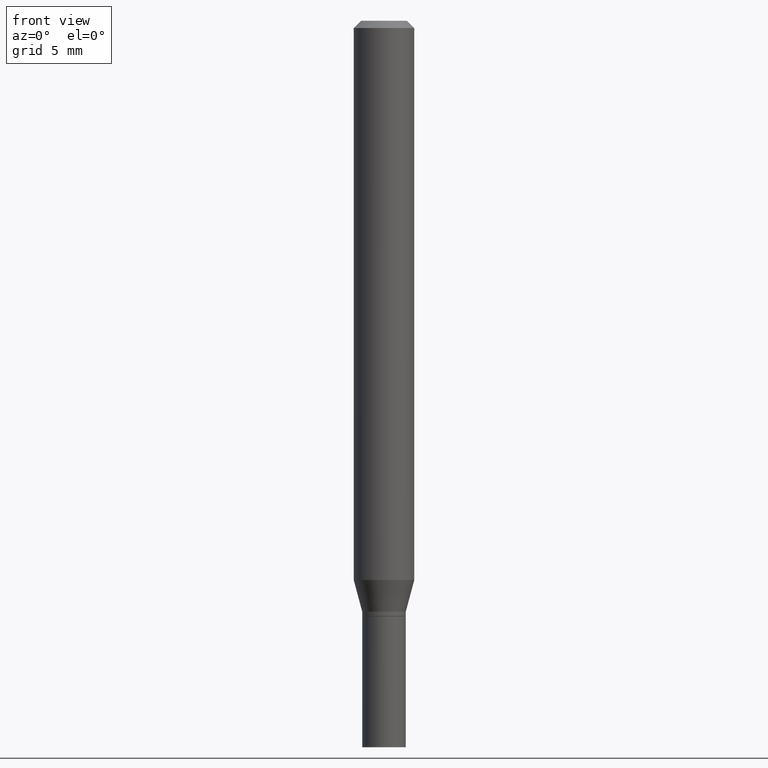
[diagram: clean part render]
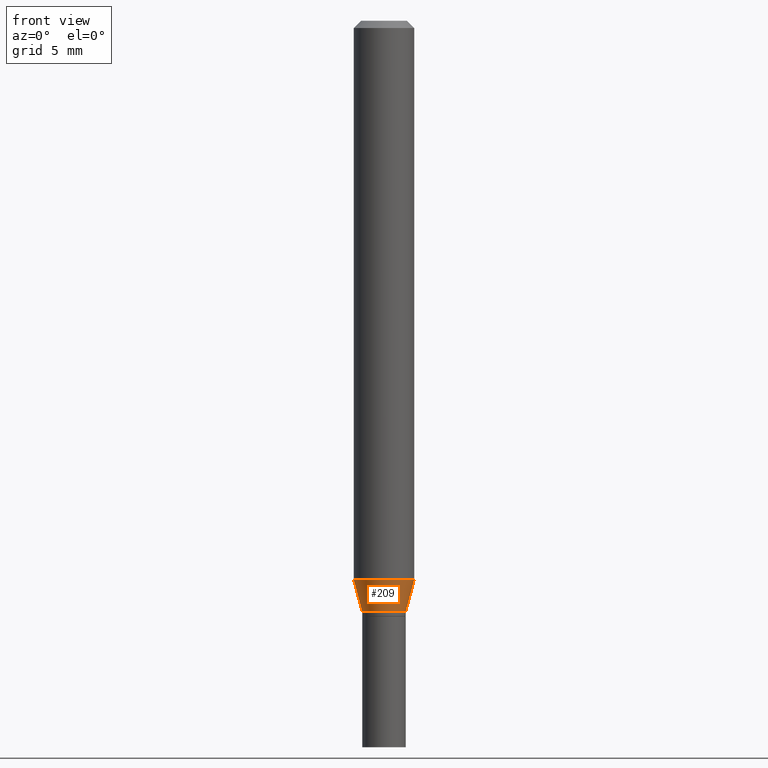
[diagram: same view with one face highlighted and labeled with its STEP entity id]
A machine part, front view. The second image highlights one B-rep face of the part: STEP entity #209.
In plain terms, the highlighted conical surface has half-angle 15 deg.
Its self-contained STEP definition (entity closure, byte-faithful):
#3 = CARTESIAN_POINT ( 'NONE',  ( 2.983471943545866670E-29, -4.259607233388637524E-15, -1.220000000000000195 ) ) ;
#6 = EDGE_CURVE ( 'NONE', #104, #147, #118, .T. ) ;
#21 = CARTESIAN_POINT ( 'NONE',  ( 0.04500000000000019262, -4.573840553884520788E-15, -1.220000000000000195 ) ) ;
#37 = DIRECTION ( 'NONE',  ( 1.000000000000000000, -6.982962677686259611E-15, 0.000000000000000000 ) ) ;
#40 = EDGE_CURVE ( 'NONE', #104, #308, #42, .T. ) ;
#42 = CIRCLE ( 'NONE', #462, 0.04500000000000019262 ) ;
#54 = DIRECTION ( 'NONE',  ( 1.000000000000000000, -6.982962677686259611E-15, 0.000000000000000000 ) ) ;
#71 = ORIENTED_EDGE ( 'NONE', *, *, #128, .T. ) ;
#82 = EDGE_LOOP ( 'NONE', ( #393, #306, #71, #203 ) ) ;
#102 = CARTESIAN_POINT ( 'NONE',  ( -0.04500000000000019262, -3.763674637602973398E-15, -1.220000000000000195 ) ) ;
#104 = VERTEX_POINT ( 'NONE', #102 ) ;
#110 = AXIS2_PLACEMENT_3D ( 'NONE', #231, #379, #54 ) ;
#118 = LINE ( 'NONE', #217, #263 ) ;
#124 = DIRECTION ( 'NONE',  ( -2.445468806185136597E-29, 3.491481338843145583E-15, 1.000000000000000000 ) ) ;
#128 = EDGE_CURVE ( 'NONE', #308, #185, #341, .T. ) ;
#129 = CIRCLE ( 'NONE', #309, 0.06250000000000000000 ) ;
#134 = VECTOR ( 'NONE', #167, 39.37007874015748143 ) ;
#147 = VERTEX_POINT ( 'NONE', #339 ) ;
#167 = DIRECTION ( 'NONE',  ( 0.2588190451025205174, 1.565188264969628476E-15, 0.9659258262890684232 ) ) ;
#179 = DIRECTION ( 'NONE',  ( 1.000000000000000000, -6.982962677686270655E-15, 0.000000000000000000 ) ) ;
#185 = VERTEX_POINT ( 'NONE', #422 ) ;
#203 = ORIENTED_EDGE ( 'NONE', *, *, #248, .F. ) ;
#209 = ADVANCED_FACE ( 'NONE', ( #447 ), #443, .T. ) ;
#215 = CARTESIAN_POINT ( 'NONE',  ( 0.04500000000000019262, -4.573840553884520788E-15, -1.220000000000000195 ) ) ;
#217 = CARTESIAN_POINT ( 'NONE',  ( -0.04500000000000019262, -3.939863002296591368E-15, -1.220000000000000195 ) ) ;
#231 = CARTESIAN_POINT ( 'NONE',  ( 2.983471943545866670E-29, -4.259607233388637524E-15, -1.220000000000000195 ) ) ;
#247 = CARTESIAN_POINT ( 'NONE',  ( 2.823756201468233313E-29, -4.031575482759418834E-15, -1.154689110867545443 ) ) ;
#248 = EDGE_CURVE ( 'NONE', #147, #185, #129, .T. ) ;
#263 = VECTOR ( 'NONE', #363, 39.37007874015748143 ) ;
#306 = ORIENTED_EDGE ( 'NONE', *, *, #40, .T. ) ;
#308 = VERTEX_POINT ( 'NONE', #215 ) ;
#309 = AXIS2_PLACEMENT_3D ( 'NONE', #247, #364, #179 ) ;
#339 = CARTESIAN_POINT ( 'NONE',  ( -0.06250000000000000000, -3.587486272909356218E-15, -1.154689110867545443 ) ) ;
#341 = LINE ( 'NONE', #21, #134 ) ;
#363 = DIRECTION ( 'NONE',  ( -0.2588190451025205174, 5.211531920934544731E-15, 0.9659258262890684232 ) ) ;
#364 = DIRECTION ( 'NONE',  ( -2.445468806185136597E-29, 3.491481338843145583E-15, 1.000000000000000000 ) ) ;
#379 = DIRECTION ( 'NONE',  ( -2.445468806185136597E-29, 3.491481338843145583E-15, 1.000000000000000000 ) ) ;
#393 = ORIENTED_EDGE ( 'NONE', *, *, #6, .F. ) ;
#422 = CARTESIAN_POINT ( 'NONE',  ( 0.06250000000000000000, -4.468010650114809714E-15, -1.154689110867545443 ) ) ;
#443 = CONICAL_SURFACE ( 'NONE', #110, 0.04500000000000019262, 0.2617993877991491858 ) ;
#447 = FACE_OUTER_BOUND ( 'NONE', #82, .T. ) ;
#462 = AXIS2_PLACEMENT_3D ( 'NONE', #3, #124, #37 ) ;